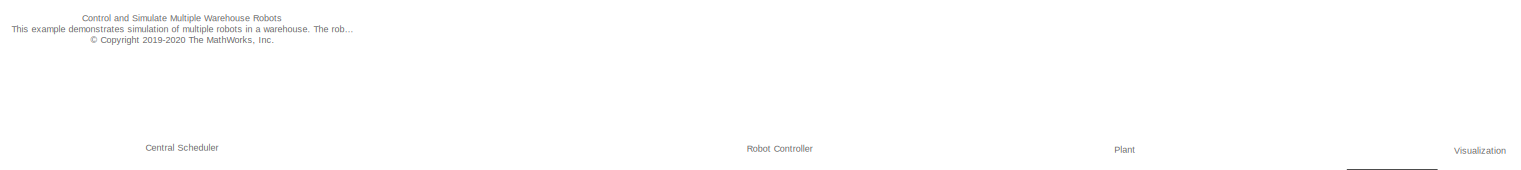
[diagram: root canvas - part 1/2, full width, top band]
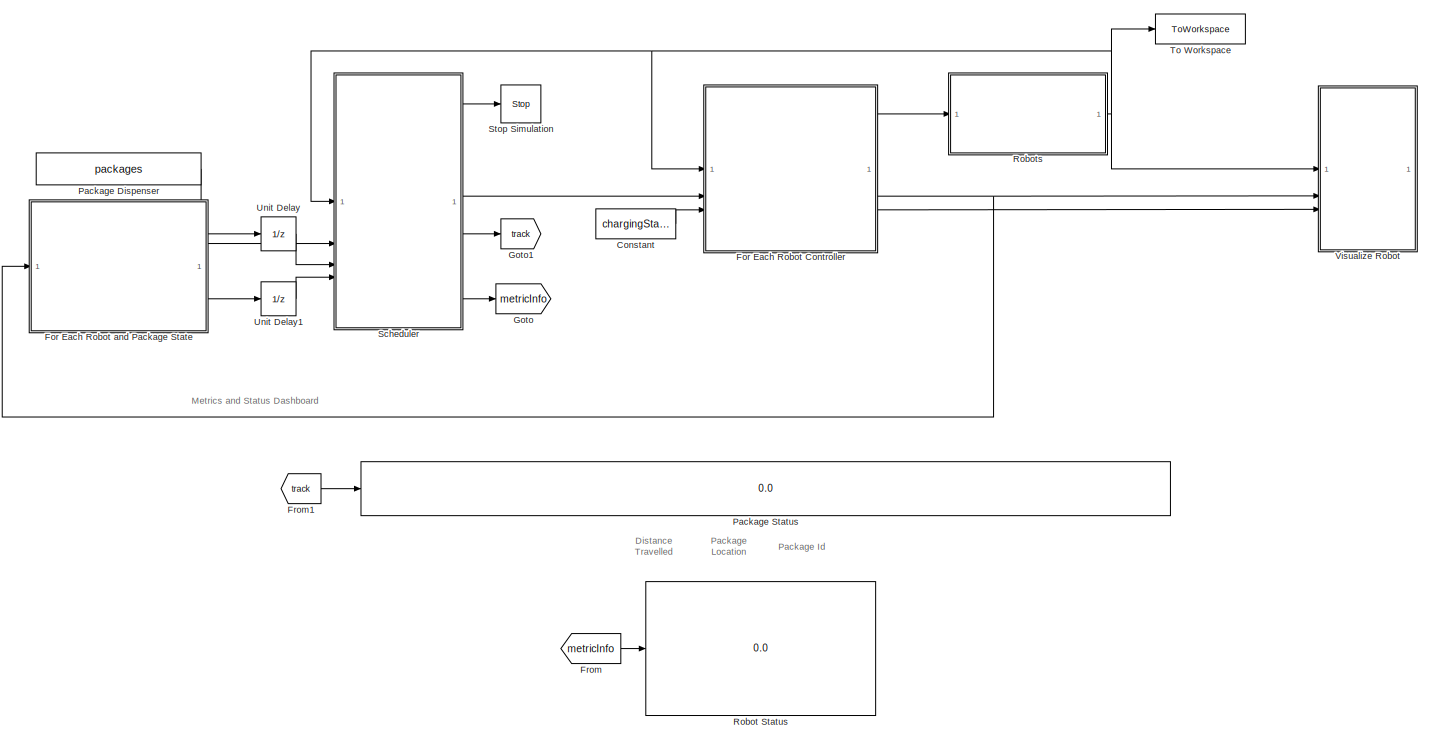
[diagram: root canvas - part 2/2, most of the canvas]
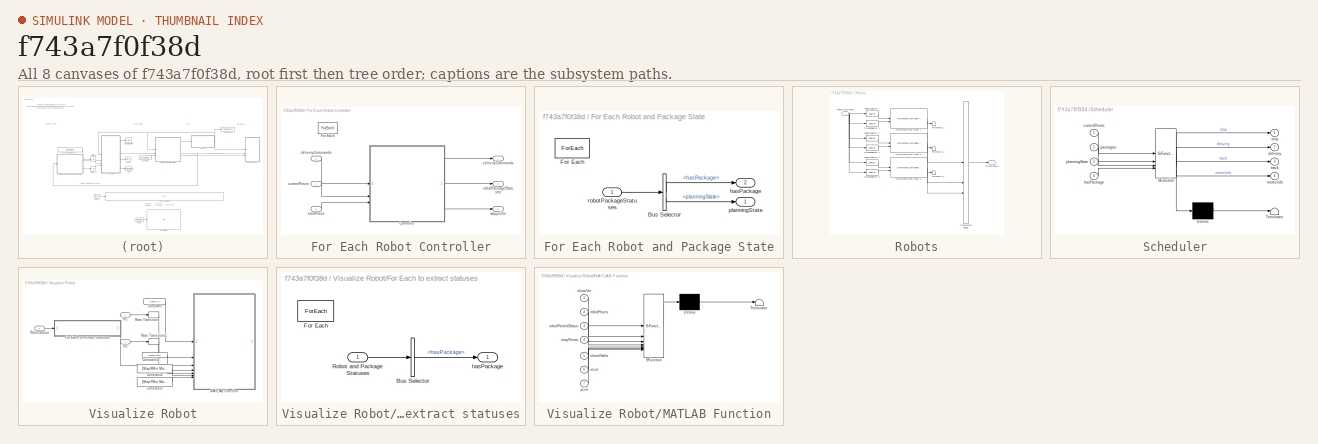
[diagram: thumbnail index - all 8 canvases of the model, root first then tree order]
MODEL slx_f743a7f0f38d
KIND model
CONFIG AbsTol = auto
CONFIG EnableMultiTasking = off
CONFIG FixedStep = 0.1
CONFIG MaxStep = auto
CONFIG MinStep = auto
CONFIG PreLoadFcn = exampleMultiRobotHelperInit
CONFIG RelTol = 1e-3
CONFIG SampleTimeConstraint = Unconstrained
CONFIG SolverName = FixedStepAuto
CONFIG StartTime = 0.0
CONFIG StopTime = inf
BLOCK [Constant] Constant
  Value = chargingStations
BLOCK [SubSystem] For Each Robot Controller
  TreatAsAtomicUnit = on
BLOCK [ModelReference] For Each Robot Controller/Controller
  ModelNameDialog = robotController.slx
  ModelReferenceVersion = 9.1
BLOCK [ForEach] For Each Robot Controller/For Each
  DisableCoverage = on
BLOCK [Inport] For Each Robot Controller/currentPoses
  Partition = on
  PartitionDimension = 2
  PartitionOffset = 0
  PartitionWidth = 1
BLOCK [Inport] For Each Robot Controller/deliveryCommands
  Partition = on
  PartitionDimension = 1
  PartitionOffset = 0
  PartitionWidth = 1
  Port = 2
BLOCK [Outport] For Each Robot Controller/robotPackageStatuses
  ConcatenationDimension = 1
  Port = 2
BLOCK [Inport] For Each Robot Controller/startPoses
  Partition = on
  PartitionDimension = 1
  PartitionOffset = 0
  PartitionWidth = 1
  Port = 3
BLOCK [Outport] For Each Robot Controller/velocityCommands
  ConcatenationDimension = 2
BLOCK [Outport] For Each Robot Controller/waypoints
  ConcatenationDimension = 3
  Port = 3
BLOCK [SubSystem] For Each Robot and Package State
  TreatAsAtomicUnit = on
BLOCK [BusSelector] For Each Robot and Package State/Bus Selector
  OutputSignals = hasPackage,planningState
BLOCK [ForEach] For Each Robot and Package State/For Each
  DisableCoverage = on
BLOCK [Outport] For Each Robot and Package State/hasPackage
  ConcatenationDimension = 1
  Port = 2
BLOCK [Outport] For Each Robot and Package State/planningState
  ConcatenationDimension = 1
BLOCK [Inport] For Each Robot and Package State/robotPackageStatuses
  Partition = on
  PartitionDimension = 1
  PartitionOffset = 0
  PartitionWidth = 1
BLOCK [From] From
  GotoTag = metricInfo
BLOCK [From] From1
  GotoTag = track
BLOCK [Goto] Goto
  GotoTag = metricInfo
BLOCK [Goto] Goto1
  GotoTag = track
BLOCK [Constant] Package Dispenser
  Value = packages
BLOCK [Display] Package Status 
  Decimation = 1
BLOCK [Display] Robot Status
  Decimation = 1
BLOCK [SubSystem] Robots
BLOCK [Concatenate] Robots/Concatenate Signals
  ConcatenateDimension = 2
  Mode = Multidimensional array
  NumInputs = 3
BLOCK [Reference] Robots/Differential-Drive Robot 1  REF=robotmobilelib/Differential Drive Kinematic Model
  SourceBlock = robotmobilelib/Differential Drive Kinematic Model
  SourceType = Differential Drive Kinematic Model
BLOCK [Reference] Robots/Differential-Drive Robot 2  REF=robotmobilelib/Differential Drive Kinematic Model
  SourceBlock = robotmobilelib/Differential Drive Kinematic Model
  SourceType = Differential Drive Kinematic Model
BLOCK [Reference] Robots/Differential-Drive Robot 3  REF=robotmobilelib/Differential Drive Kinematic Model
  SourceBlock = robotmobilelib/Differential Drive Kinematic Model
  SourceType = Differential Drive Kinematic Model
BLOCK [Selector] Robots/OmegaSelector 1
  IndexOptions = Index vector (dialog),Index vector (dialog)
  Indices = 2,1
  InputPortWidth = 3
  NumberOfDimensions = 2
  OutputSizes = 1
BLOCK [Selector] Robots/OmegaSelector 2
  IndexOptions = Index vector (dialog),Index vector (dialog)
  Indices = 2,2
  InputPortWidth = 3
  NumberOfDimensions = 2
  OutputSizes = 1
BLOCK [Selector] Robots/OmegaSelector 3
  IndexOptions = Index vector (dialog),Index vector (dialog)
  Indices = 2,3
  InputPortWidth = 3
  NumberOfDimensions = 2
  OutputSizes = 1
BLOCK [Terminator] Robots/Terminator_1
BLOCK [Terminator] Robots/Terminator_2
BLOCK [Terminator] Robots/Terminator_3
BLOCK [Selector] Robots/VelocitySelector 1
  IndexOptions = Index vector (dialog),Index vector (dialog)
  Indices = 1,1
  InputPortWidth = 3
  NumberOfDimensions = 2
  OutputSizes = 1
BLOCK [Selector] Robots/VelocitySelector 2
  IndexOptions = Index vector (dialog),Index vector (dialog)
  Indices = 1,2
  InputPortWidth = 3
  NumberOfDimensions = 2
  OutputSizes = 1
BLOCK [Selector] Robots/VelocitySelector 3
  IndexOptions = Index vector (dialog),Index vector (dialog)
  Indices = 1,3
  InputPortWidth = 3
  NumberOfDimensions = 2
  OutputSizes = 1
BLOCK [Outport] Robots/currentPoses
BLOCK [Inport] Robots/velocityCommands
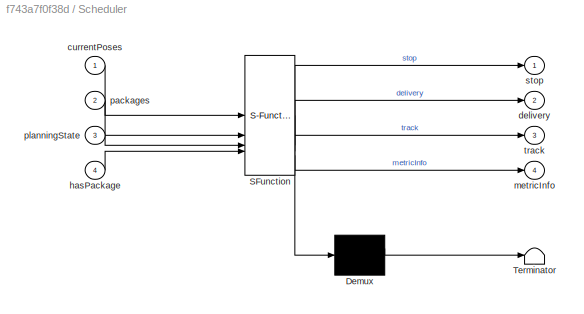
BLOCK [SubSystem] Scheduler
  ErrorFcn = Stateflow.Translate.translate
  PermitHierarchicalResolution = ExplicitOnly
  Priority = 1
  SFBlockType = Chart
  TreatAsAtomicUnit = on
BLOCK [Demux] Scheduler/ Demux 
  Outputs = 1
BLOCK [S-Function] Scheduler/ SFunction 
  EnableBusSupport = on
  FunctionName = sf_sfun
  Parameters = collisionThresh
  PortCounts = [4 5]
  SFcnIsStateOwnerBlock = off
  SFunctionDeploymentMode = off
  Tag = Stateflow S-Function 3
BLOCK [Terminator] Scheduler/ Terminator 
BLOCK [Inport] Scheduler/currentPoses
BLOCK [Outport] Scheduler/delivery
  Port = 2
BLOCK [Inport] Scheduler/hasPackage
  Port = 4
BLOCK [Outport] Scheduler/metricInfo
  Port = 4
BLOCK [Inport] Scheduler/packages
  Port = 2
BLOCK [Inport] Scheduler/planningState
  Port = 3
BLOCK [Outport] Scheduler/stop
  VectorParamsAs1DForOutWhenUnconnected = off
BLOCK [Outport] Scheduler/track
  Port = 3
BLOCK [Stop] Stop Simulation
BLOCK [ToWorkspace] To Workspace
  FixptAsFi = on
  MaxDataPoints = inf
  SampleTime = -1
  VariableName = robotPoses
BLOCK [UnitDelay] Unit Delay
  HasFrameUpgradeWarning = on
  InitialCondition = repmat(RobotState.AtDock, [1, numRobots])
  SampleTime = -1
BLOCK [UnitDelay] Unit Delay1
  HasFrameUpgradeWarning = on
  InitialCondition = repmat(0, [1, numRobots])
  SampleTime = -1
BLOCK [SubSystem] Visualize Robot
BLOCK [Constant] Visualize Robot/Constant
  Value = ShowViz
BLOCK [Constant] Visualize Robot/Constant1
  Value = ShowPaths
BLOCK [Constant] Visualize Robot/Constant2
  Value = [MapXMin MapXMax]
BLOCK [Constant] Visualize Robot/Constant3
  Value = [MapYMin MapYMax]
BLOCK [SubSystem] Visualize Robot/For Each to extract statuses
  TreatAsAtomicUnit = on
BLOCK [BusSelector] Visualize Robot/For Each to extract statuses/Bus Selector
  OutputSignals = hasPackage
BLOCK [ForEach] Visualize Robot/For Each to extract statuses/For Each
  DisableCoverage = on
BLOCK [Inport] Visualize Robot/For Each to extract statuses/Robot and Package Statuses
  Partition = on
  PartitionDimension = 1
  PartitionOffset = 0
  PartitionWidth = 1
BLOCK [Outport] Visualize Robot/For Each to extract statuses/hasPackage
  ConcatenationDimension = 1
BLOCK [Inport] Visualize Robot/In1
BLOCK [Inport] Visualize Robot/In2
  Port = 3
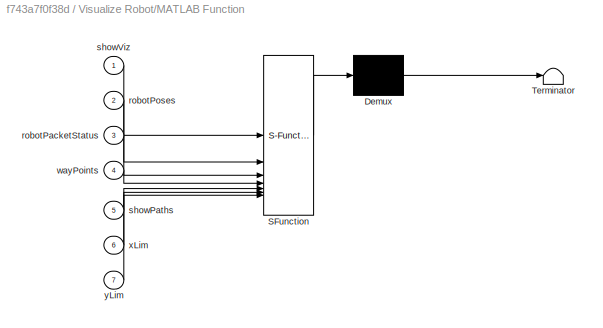
BLOCK [SubSystem] Visualize Robot/MATLAB Function
  ErrorFcn = Stateflow.Translate.translate
  PermitHierarchicalResolution = ExplicitOnly
  SFBlockType = MATLAB Function
  TreatAsAtomicUnit = on
BLOCK [Demux] Visualize Robot/MATLAB Function/ Demux 
  Outputs = 1
BLOCK [S-Function] Visualize Robot/MATLAB Function/ SFunction 
  EnableBusSupport = on
  FunctionName = sf_sfun
  Parameters = DockLocations,MeshSelectionIdx,ShelfLocations,logicalMap
  PortCounts = [7 1]
  SFcnIsStateOwnerBlock = off
  SFunctionDeploymentMode = off
  Tag = Stateflow S-Function 2
BLOCK [Terminator] Visualize Robot/MATLAB Function/ Terminator 
BLOCK [Inport] Visualize Robot/MATLAB Function/robotPacketStatus
  Port = 3
BLOCK [Inport] Visualize Robot/MATLAB Function/robotPoses
  Port = 2
BLOCK [Inport] Visualize Robot/MATLAB Function/showPaths
  Port = 5
BLOCK [Inport] Visualize Robot/MATLAB Function/showViz
BLOCK [Inport] Visualize Robot/MATLAB Function/wayPoints
  Port = 4
BLOCK [Inport] Visualize Robot/MATLAB Function/xLim
  Port = 6
BLOCK [Inport] Visualize Robot/MATLAB Function/yLim
  Port = 7
BLOCK [RateTransition] Visualize Robot/Rate Transition
BLOCK [RateTransition] Visualize Robot/Rate Transition1
BLOCK [Inport] Visualize Robot/RobotStatus
  Port = 2
ANNOTATION (root): Control and Simulate Multiple Warehouse Robots This example demonstrates simulation of multiple robots in a warehouse. The robots start from their respective charging stations, go to the loading station, pick up packages and drop them at the packages' respective unloading stations. <copyright redacted>
ANNOTATION (root): Distance Travelled
ANNOTATION (root): Package Location
ANNOTATION (root): Package Id
ANNOTATION (root): Central Scheduler
ANNOTATION (root): Metrics and Status Dashboard
ANNOTATION (root): Plant
ANNOTATION (root): Robot Controller
ANNOTATION (root): Visualization
LINE Constant:1 -> For Each Robot Controller:3
LINE For Each Robot Controller/Controller:1 -> For Each Robot Controller/velocityCommands:1
LINE For Each Robot Controller/Controller:2 -> For Each Robot Controller/robotPackageStatuses:1
LINE For Each Robot Controller/Controller:3 -> For Each Robot Controller/waypoints:1
LINE For Each Robot Controller/currentPoses:1 -> For Each Robot Controller/Controller:2
LINE For Each Robot Controller/deliveryCommands:1 -> For Each Robot Controller/Controller:1
LINE For Each Robot Controller/startPoses:1 -> For Each Robot Controller/Controller:3
LINE For Each Robot Controller:1 -> Robots:1
NET For Each Robot Controller:2 -> For Each Robot and Package State:1, Visualize Robot:2
LINE For Each Robot Controller:3 -> Visualize Robot:3
LINE For Each Robot and Package State/Bus Selector:1 -> For Each Robot and Package State/hasPackage:1
LINE For Each Robot and Package State/Bus Selector:2 -> For Each Robot and Package State/planningState:1
LINE For Each Robot and Package State/robotPackageStatuses:1 -> For Each Robot and Package State/Bus Selector:1
LINE For Each Robot and Package State:1 -> Unit Delay:1
LINE For Each Robot and Package State:2 -> Unit Delay1:1
LINE From1:1 -> Package Status :1
LINE From:1 -> Robot Status:1
LINE Package Dispenser:1 -> Scheduler:2
LINE Robots/Concatenate Signals:1 -> Robots/currentPoses:1
LINE Robots/Differential-Drive Robot 1:1 -> Robots/Concatenate Signals:1
LINE Robots/Differential-Drive Robot 1:2 -> Robots/Terminator_1:1
LINE Robots/Differential-Drive Robot 2:1 -> Robots/Concatenate Signals:2
LINE Robots/Differential-Drive Robot 2:2 -> Robots/Terminator_2:1
LINE Robots/Differential-Drive Robot 3:1 -> Robots/Concatenate Signals:3
LINE Robots/Differential-Drive Robot 3:2 -> Robots/Terminator_3:1
LINE Robots/OmegaSelector 1:1 -> Robots/Differential-Drive Robot 1:2
LINE Robots/OmegaSelector 2:1 -> Robots/Differential-Drive Robot 2:2
LINE Robots/OmegaSelector 3:1 -> Robots/Differential-Drive Robot 3:2
LINE Robots/VelocitySelector 1:1 -> Robots/Differential-Drive Robot 1:1
LINE Robots/VelocitySelector 2:1 -> Robots/Differential-Drive Robot 2:1
LINE Robots/VelocitySelector 3:1 -> Robots/Differential-Drive Robot 3:1
NET Robots/velocityCommands:1 -> Robots/OmegaSelector 1:1, Robots/OmegaSelector 2:1, Robots/OmegaSelector 3:1, Robots/VelocitySelector 1:1, Robots/VelocitySelector 2:1, Robots/VelocitySelector 3:1
NET Robots:1 -> For Each Robot Controller:1, Scheduler:1, To Workspace:1, Visualize Robot:1
LINE Scheduler:1 -> Stop Simulation:1
LINE Scheduler:2 -> For Each Robot Controller:2
LINE Scheduler:3 -> Goto1:1
LINE Scheduler:4 -> Goto:1
LINE Unit Delay1:1 -> Scheduler:4
LINE Unit Delay:1 -> Scheduler:3
LINE Visualize Robot/Constant1:1 -> Visualize Robot/MATLAB Function:5
LINE Visualize Robot/Constant2:1 -> Visualize Robot/MATLAB Function:6
LINE Visualize Robot/Constant3:1 -> Visualize Robot/MATLAB Function:7
LINE Visualize Robot/Constant:1 -> Visualize Robot/MATLAB Function:1
LINE Visualize Robot/For Each to extract statuses/Bus Selector:1 -> Visualize Robot/For Each to extract statuses/hasPackage:1
LINE Visualize Robot/For Each to extract statuses/Robot and Package Statuses:1 -> Visualize Robot/For Each to extract statuses/Bus Selector:1
LINE Visualize Robot/For Each to extract statuses:1 -> Visualize Robot/MATLAB Function:3
LINE Visualize Robot/In1:1 -> Visualize Robot/Rate Transition:1
LINE Visualize Robot/In2:1 -> Visualize Robot/Rate Transition1:1
LINE Visualize Robot/Rate Transition1:1 -> Visualize Robot/MATLAB Function:4
LINE Visualize Robot/Rate Transition:1 -> Visualize Robot/MATLAB Function:2
LINE Visualize Robot/RobotStatus:1 -> Visualize Robot/For Each to extract statuses:1
note: NET lines group one-source signal fan-out (src -> all destinations, sorted); 1:1 wires keep LINE
CHART Visualize Robot/MATLAB Function states=1 transitions=1
  STATE_LABEL 'eML_blk_kernel()'
  STATE_LABEL "SCRIPT:\nfunction simulationVisualization(showViz, robotPoses, robotPacketStatus, wayPoints, logicalMap, ShelfLocations, DockLocations, showPaths, xLim, yLim, MeshSelectionIdx)\n%#codegen\n\n%% Setup\n\ncoder.extrinsic('exampleHelperVisualizeWarehouseRobots');\npersistent f ax\n\nif isempty(f) && showViz\n    f = figure('units','normalized','outerposition',[0 0 0.75 0.75]);\n    ax = axes('Parent', f);\n    t...<+613ch>"
CHART Scheduler states=6 transitions=19
  STATE_LABEL 'Assign\nentry:\nstop = 0;\nentry, during:\nactiveRobots = avoidCollision(currentPoses, collisionThresh);\n'
  STATE_LABEL '[currentPackage <= length(packages)]{robot = 1;}'
  STATE_LABEL '[robot <= numRobots]{delivery(robot).active = activeRobots(robot);}'
  STATE_LABEL '[planningState(robot) == RobotState.AtLoadingStn && ...\n~hasPackage(robot)&&...\ncurrentPackage <= length(packages)]\n{\ndelivery(robot).package= packages(currentPackage);\ndelivery(robot).packageId = currentPackage;\ncurrentPackage = currentPackage + 1;\ndelivery(robot).givenPackage = 1;\n}'
  STATE_LABEL '{packageTrack;\nrobotTrack;}'
  STATE_LABEL '{delivery(robot).givenPackage = 0;}'
  STATE_LABEL '{robot = robot + 1;}'
  STATE_LABEL 'robotActive = avoidCollision(robotPoses,thresh)'
  STATE_LABEL "SCRIPT:\nfunction robotActive = avoidCollision(robotPoses,thresh)\nnRobots = size(robotPoses, 2);\nrobotActive = ones(1, nRobots);\nposeIdx = 1:2;\n\n% calculate robot pairwise distances\nposes = robotPoses(poseIdx, :)';\nrobotPairwiseDistances = zeros(nRobots, nRobots);\nrobotPairwiseDistances = exampleHelperRobotPairwiseDistances(poses, poses);\n\n% check if robots are too close\nrobotCollisions = robotPair...<+109ch>"
  STATE_LABEL 'packageTrack'
  STATE_LABEL 'SCRIPT:\nfunction packageTrack\nnumPackets = length(packages);\nfor r = 1 : numRobots\n    packageId = delivery(r).packageId;\n    if(packageId > 0 && track(packageId) ~= PackageState.Delivered)\n        track(packageId) = PackageState.InProgress;\n    end\n    if(packageId > 0)\n        if(~hasPackage(r) && planningState(r) == RobotState.AtUnloadingStn)\n            track(packageId) = PackageState.Delivere...<+26ch>'
  STATE_LABEL 'robotTrack'
  STATE_LABEL "SCRIPT:\nfunction robotTrack\n% calculate distance\ndisplacement = (prevPose - currentPoses(1:2, :));\nd = sqrt(diag(displacement' * displacement));\ndistance = distance + d;\nprevPose = currentPoses(1:2, :);\nd = distance;\nmetricInfo(:, 1) = distance(:);\n\nrobotPackages = zeros(1, numRobots);\nrobotPackageId = zeros(1, numRobots);\npacketIds = zeros(1, numRobots);\nfor r = 1:numRobots\n    robotPackages(r) =...<+151ch>"
  STATE_LABEL 'LastPackage\nentry, during:\nactiveRobots = avoidCollision(currentPoses, collisionThresh);'
  STATE_LABEL '{robot = 1;}'
  STATE_LABEL '[robot <= numRobots]{delivery(robot).active = activeRobots(robot);}'
  STATE_LABEL '{packageTrack;\nrobotTrack;}'
  STATE_LABEL '{delivery(robot).givenPackage = 0;\n}'
  STATE_LABEL '{robot = robot + 1;}'
  STATE_LABEL 'Stop\nstop = 1;'
CHART  states=0 transitions=0
CHART  states=0 transitions=0
